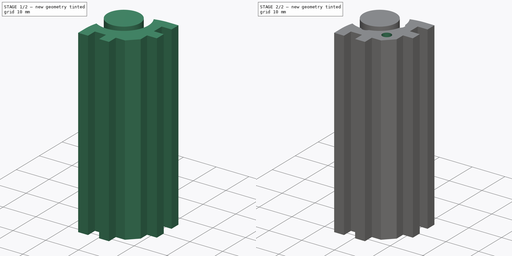
[diagram: build sequence overview — one tinted view per stage of 2, left to right]
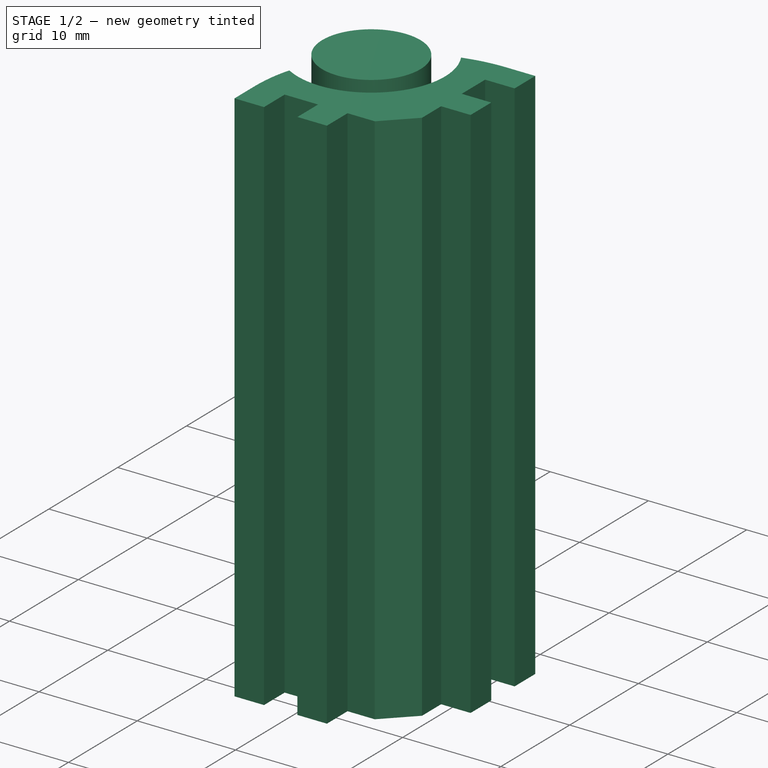
[diagram: stage 1 of 2 — iso view after this stage's code; geometry added in this stage tinted green]
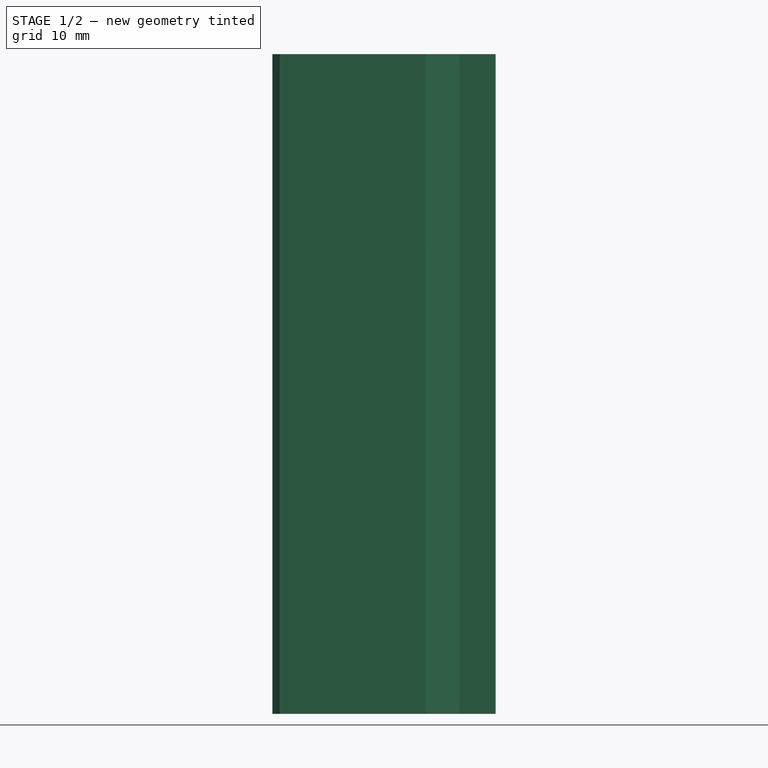
[diagram: stage 1 of 2 — front view after this stage's code; geometry added in this stage tinted green]
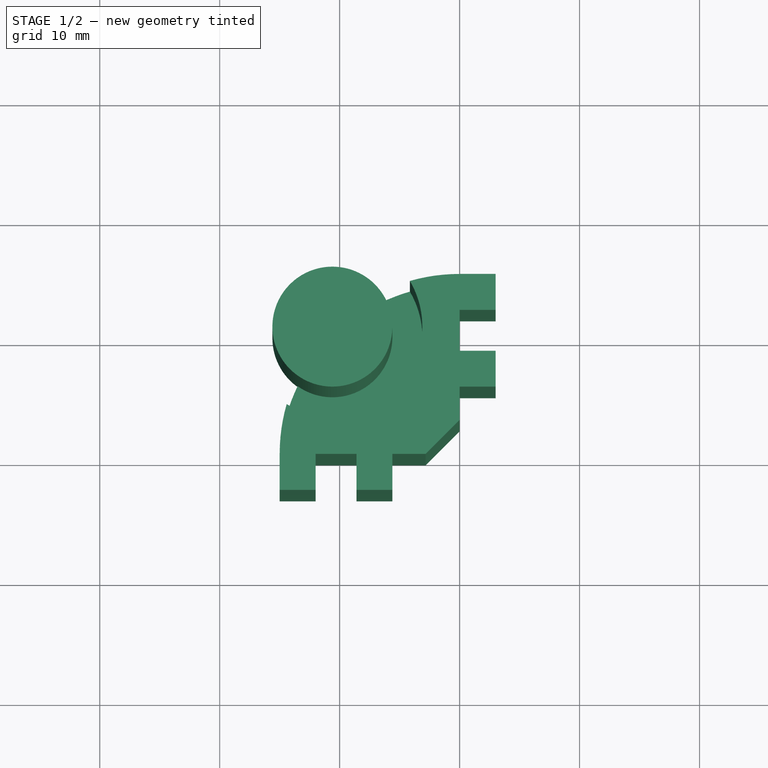
[diagram: stage 1 of 2 — top view after this stage's code; geometry added in this stage tinted green]
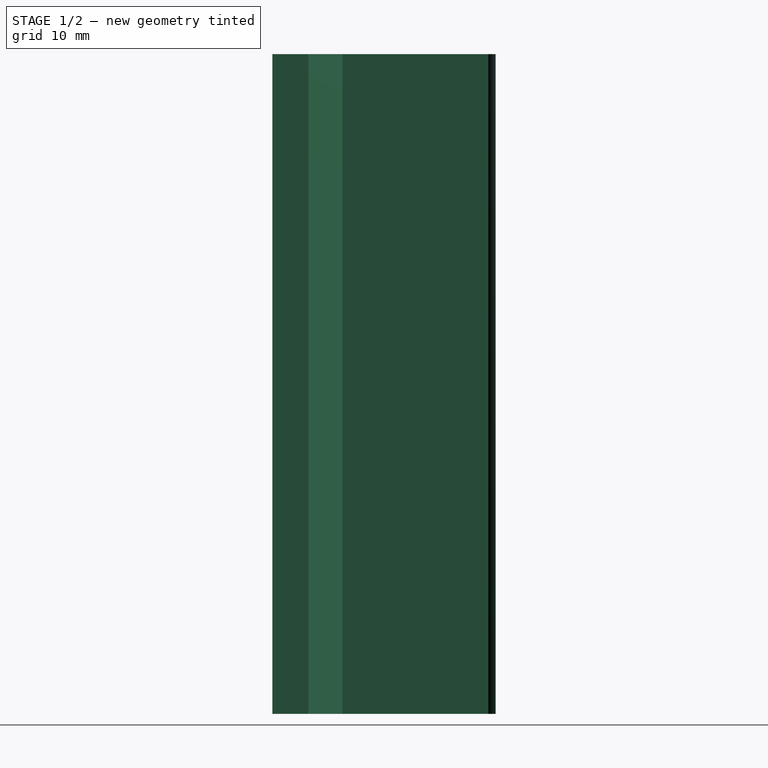
[diagram: stage 1 of 2 — right view after this stage's code; geometry added in this stage tinted green]
FCSTD DOCUMENT  (FreeCAD 0.16R6151 (Git))
Label: Edge
License: All rights reserved
LicenseURL: http://en.wikipedia.org/wiki/All_rights_reserved
objects: Sketcher::SketchObject×4, PartDesign::Pocket×3, PartDesign::Pad×1
note: 12 computed .brp shape members not serialized (recipe doc carries the construction recipe); baked Part::Feature solids carry a one-line shape summary decoded from their .brp

FEATURE [Sketcher::SketchObject] Sketch
  sketch-geometry (25):
    g0: LineSegment StartX=-15 StartY=0 StartZ=0 EndX=-15 EndY=-3 EndZ=0
    g1: LineSegment StartX=-15 StartY=-3 StartZ=0 EndX=-12 EndY=-3 EndZ=0
    g2: LineSegment StartX=-12 StartY=-3 StartZ=0 EndX=-12 EndY=0 EndZ=0
    g3: LineSegment StartX=-12 StartY=0 StartZ=0 EndX=-8.6 EndY=0 EndZ=0
    g4: LineSegment StartX=-8.6 StartY=0 StartZ=0 EndX=-8.6 EndY=-3 EndZ=0
    g5: LineSegment StartX=-8.6 StartY=-3 StartZ=0 EndX=-5.6 EndY=-3 EndZ=0
    g6: LineSegment StartX=-5.6 StartY=-3 StartZ=0 EndX=-5.6 EndY=0 EndZ=0
    g7: LineSegment [constr] StartX=-12 StartY=-3 StartZ=0 EndX=-8.6 EndY=-3 EndZ=0
    g8: LineSegment StartX=-5.6 StartY=0 StartZ=0 EndX=-2.82843 EndY=0 EndZ=0
    g9: LineSegment StartX=-2.82843 StartY=0 StartZ=0 EndX=0 EndY=2.82843 EndZ=0
    g10: LineSegment StartX=0 StartY=15 StartZ=0 EndX=3 EndY=15 EndZ=0
    g11: LineSegment StartX=3 StartY=15 StartZ=0 EndX=3 EndY=12 EndZ=0
    g12: LineSegment StartX=3 StartY=12 StartZ=0 EndX=0 EndY=12 EndZ=0
    g13: LineSegment StartX=0 StartY=12 StartZ=0 EndX=0 EndY=8.6 EndZ=0
    g14: LineSegment StartX=0 StartY=8.6 StartZ=0 EndX=3 EndY=8.6 EndZ=0
    g15: LineSegment StartX=3 StartY=8.6 StartZ=0 EndX=3 EndY=5.6 EndZ=0
    g16: LineSegment StartX=3 StartY=5.6 StartZ=0 EndX=0 EndY=5.6 EndZ=0
    g17: LineSegment StartX=0 StartY=5.6 StartZ=0 EndX=0 EndY=2.82843 EndZ=0
    g18: LineSegment [constr] StartX=3 StartY=12 StartZ=0 EndX=3 EndY=8.6 EndZ=0
    g19: ArcOfCircle CenterX=0 CenterY=0 CenterZ=0 NormalX=0 NormalY=0 NormalZ=1 Radius=15 StartAngle=2.69109 EndAngle=3.14159
    g20: ArcOfCircle CenterX=0 CenterY=0 CenterZ=0 NormalX=0 NormalY=0 NormalZ=1 Radius=15 StartAngle=1.5708 EndAngle=2.0213
    g21: ArcOfCircle CenterX=-10.6066 CenterY=10.6066 CenterZ=0 NormalX=0 NormalY=0 NormalZ=1 Radius=5 StartAngle=0.61795 EndAngle=4.09444
    g22: ArcOfCircle [constr] CenterX=0 CenterY=0 CenterZ=0 NormalX=0 NormalY=0 NormalZ=1 Radius=15 StartAngle=2.0213 EndAngle=2.69109
    g23: LineSegment [constr] StartX=-6.53126 StartY=13.5034 StartZ=0 EndX=0 EndY=13.5034 EndZ=0
    g24: LineSegment [constr] StartX=-13.5034 StartY=6.53126 StartZ=0 EndX=-13.5034 EndY=0 EndZ=0
  constraints (71):
    c: PointOnObject(g19,g-1)
    c: Tangent(g19,g0) = -1.5708
    c: Coincident(g0,g1)
    c: Horizontal(g1)
    c: Coincident(g1,g2)
    c: Vertical(g2)
    c: Coincident(g2,g3)
    c: Horizontal(g3)
    c: Coincident(g3,g4)
    c: Vertical(g4)
    c: Coincident(g4,g5)
    c: Horizontal(g5)
    c: Coincident(g5,g6)
    c: Vertical(g6)
    c: Coincident(g7,g1)
    c: Coincident(g7,g4)
    c: Horizontal(g7)
    c: PointOnObject(g20,g-2)
    c: PointOnObject(g6,g-1)
    c: Coincident(g6,g8)
    c: PointOnObject(g8,g-1)
    c: Coincident(g8,g9)
    c: PointOnObject(g9,g-2)
    c: Tangent(g20,g10) = 1.5708
    c: Coincident(g10,g11)
    c: Vertical(g11)
    c: Coincident(g11,g12)
    c: Horizontal(g12)
    c: Coincident(g12,g13)
    c: Vertical(g13)
    c: Coincident(g13,g14)
    c: Horizontal(g14)
    c: Coincident(g14,g15)
    c: Vertical(g15)
    c: Coincident(g15,g16)
    c: PointOnObject(g16,g-2)
    c: Horizontal(g16)
    c: Coincident(g16,g17)
    c: Coincident(g17,g9)
    c: Equal(g8,g17)
    c: Equal(g1,g5)
    c: Equal(g5,g15)
    c: Equal(g11,g15)
    c: Coincident(g18,g11)
    c: Coincident(g18,g14)
    c: Vertical(g18)
    c: Equal(g13,g3)
    c: Distance(g3) = 3.4
    c: Equal(g4,g12)
    c: PointOnObject(g2,g-1)
    c: PointOnObject(g13,g-2)
    c: Distance(g16) = 3
    c: Distance(g1) = 3
    c: Distance(g9) = 4
    c: Coincident(g19,g-1)
    c: Coincident(g20,g-1)
    c: Coincident(g21,g19)
    c: Coincident(g21,g20)
    c: Coincident(g22,g-1)
    c: Coincident(g22,g19)
    c: Coincident(g22,g20)
    c: PointOnObject(g21,g22)
    c: Radius(g21) = 5
    c: Radius(g19) = 15
    c: Coincident(g23,g20)
    c: PointOnObject(g23,g-2)
    c: Horizontal(g23)
    c: Coincident(g24,g19)
    c: PointOnObject(g24,g-1)
    c: Vertical(g24)
    c: Equal(g24,g23)
FEATURE [PartDesign::Pad] Pad
  Length = 55
  Length2 = 100
  Sketch = -> Sketch
  Type = 0
FEATURE [Sketcher::SketchObject] Sketch001
  Support = -> Pad [Face22]
  sketch-geometry (5):
    g0: Circle CenterX=-10.6066 CenterY=10.6066 CenterZ=0 NormalX=0 NormalY=0 NormalZ=1 Radius=7.5
    g1: Circle CenterX=-10.6066 CenterY=10.6066 CenterZ=0 NormalX=0 NormalY=0 NormalZ=1 Radius=5
    g2: LineSegment [constr] StartX=-10.6066 StartY=10.6066 StartZ=0 EndX=0 EndY=10.6066 EndZ=0
    g3: LineSegment [constr] StartX=-10.6066 StartY=10.6066 StartZ=0 EndX=-10.6066 EndY=0 EndZ=0
    g4: ArcOfCircle [constr] CenterX=0 CenterY=0 CenterZ=0 NormalX=0 NormalY=0 NormalZ=1 Radius=15 StartAngle=1.5708 EndAngle=3.14159
  constraints (15):
    c: Coincident(g1,g0)
    c: Radius(g1) = 5
    c: Coincident(g2,g0)
    c: PointOnObject(g2,g-2)
    c: Horizontal(g2)
    c: Coincident(g3,g0)
    c: PointOnObject(g3,g-1)
    c: Vertical(g3)
    c: Equal(g2,g3)
    c: Radius(g0) = 7.5
    c: Coincident(g4,g-1)
    c: PointOnObject(g4,g-1)
    c: PointOnObject(g4,g-2)
    c: PointOnObject(g0,g4)
    c: Radius(g4) = 15
FEATURE [PartDesign::Pocket] Pocket
  Length = 51
  Sketch = -> Sketch001
  Type = 0
  expr: Length = Pad.Length - 4mm
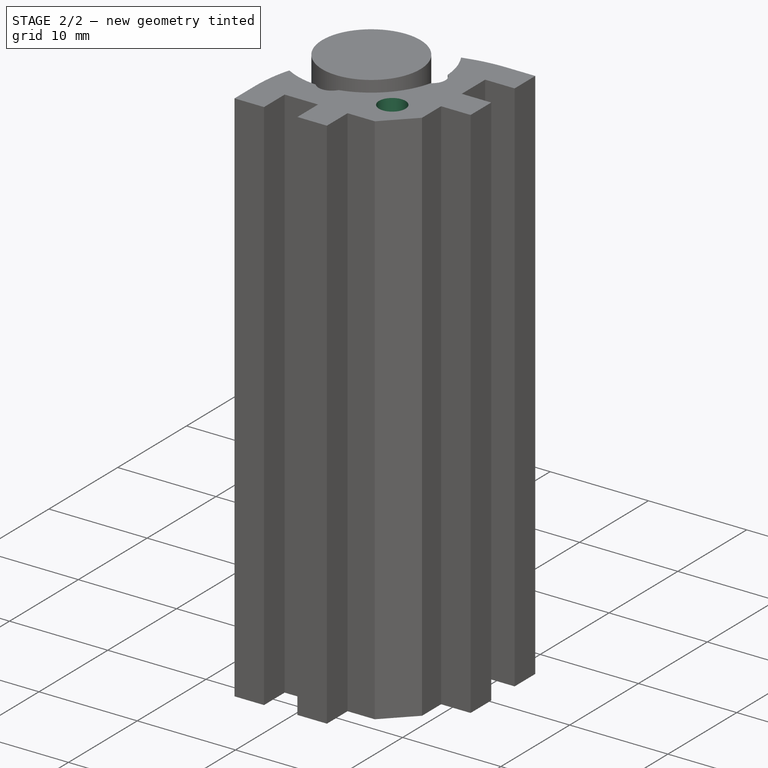
[diagram: stage 2 of 2 — iso view after this stage's code; geometry added in this stage tinted green]
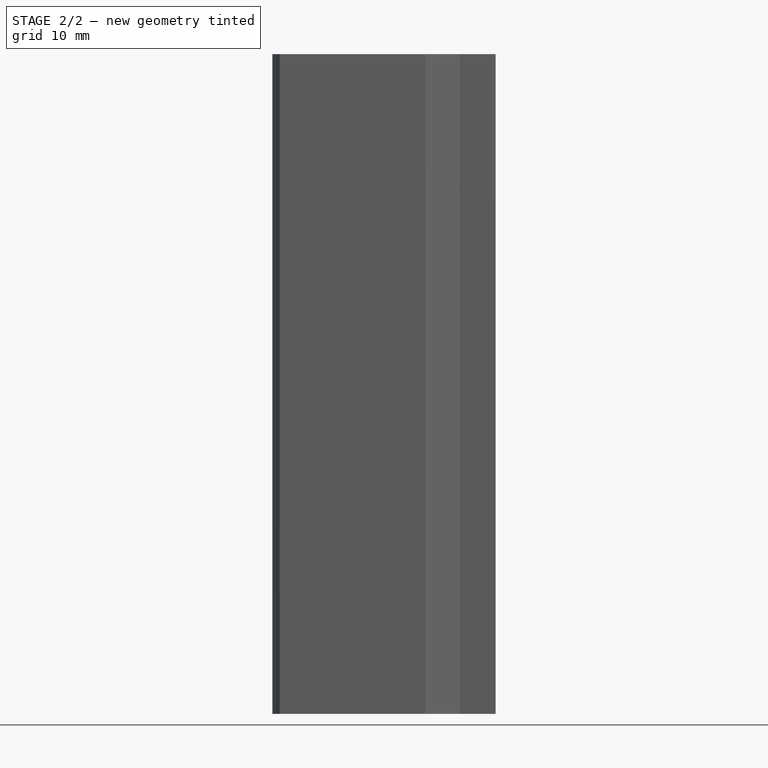
[diagram: stage 2 of 2 — front view after this stage's code; geometry added in this stage tinted green]
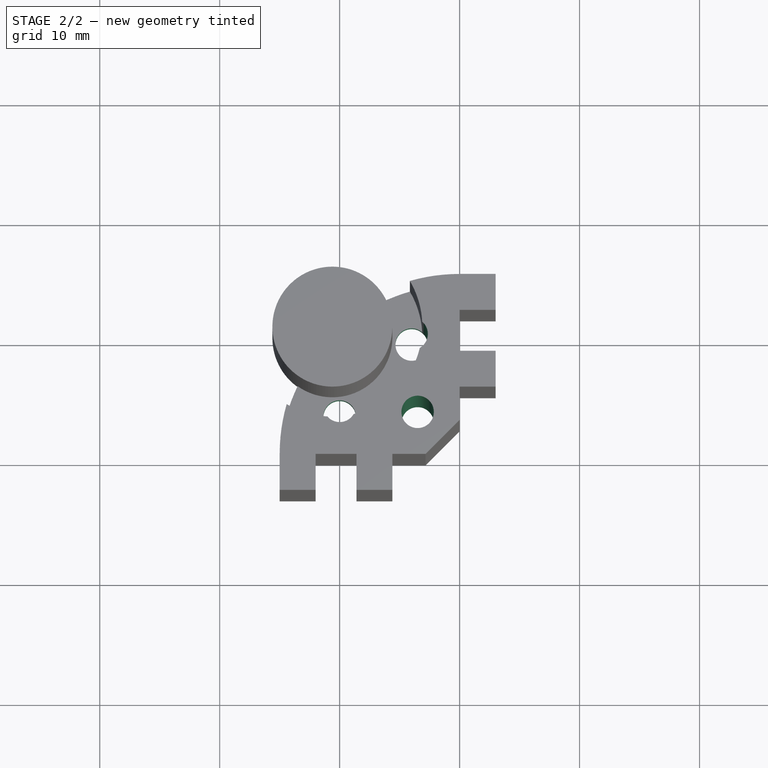
[diagram: stage 2 of 2 — top view after this stage's code; geometry added in this stage tinted green]
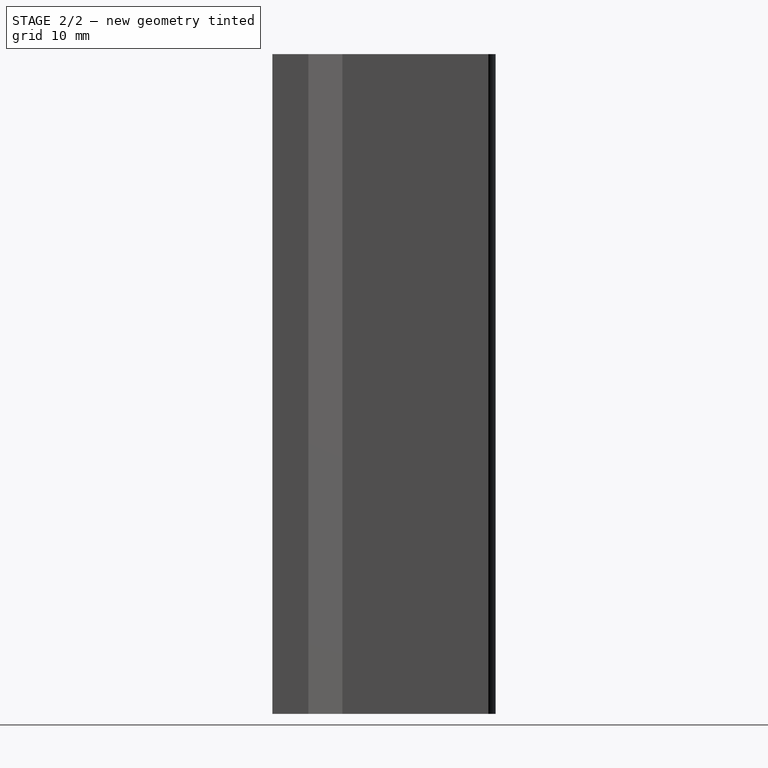
[diagram: stage 2 of 2 — right view after this stage's code; geometry added in this stage tinted green]
FEATURE [Sketcher::SketchObject] Sketch002
  Support = -> Pocket [Face4]
  sketch-geometry (4):
    g0: ArcOfCircle [constr] CenterX=0 CenterY=0 CenterZ=0 NormalX=0 NormalY=0 NormalZ=1 Radius=15 StartAngle=1.5708 EndAngle=3.14159
    g1: Circle CenterX=-10.6066 CenterY=10.6066 CenterZ=0 NormalX=0 NormalY=0 NormalZ=1 Radius=1.35
    g2: LineSegment [constr] StartX=-10.6066 StartY=10.6066 StartZ=0 EndX=0 EndY=10.6066 EndZ=0
    g3: LineSegment [constr] StartX=-10.6066 StartY=10.6066 StartZ=0 EndX=-10.6066 EndY=0 EndZ=0
  constraints (13):
    c: Coincident(g0,g-1)
    c: PointOnObject(g0,g-1)
    c: PointOnObject(g0,g-2)
    c: Radius(g0) = 15
    c: PointOnObject(g1,g0)
    c: Coincident(g2,g1)
    c: PointOnObject(g2,g-2)
    c: Horizontal(g2)
    c: Coincident(g3,g1)
    c: PointOnObject(g3,g-1)
    c: Vertical(g3)
    c: Equal(g2,g3)
    c: Radius(g1) = 1.35
FEATURE [PartDesign::Pocket] Pocket001
  Length = 15
  Sketch = -> Sketch002
  Type = 0
FEATURE [Sketcher::SketchObject] Sketch003
  Support = -> Pocket001 [Face2]
  sketch-geometry (11):
    g0: Circle CenterX=-10 CenterY=-4 CenterZ=0 NormalX=0 NormalY=0 NormalZ=1 Radius=1.35
    g1: Circle CenterX=-4 CenterY=-10 CenterZ=0 NormalX=0 NormalY=0 NormalZ=1 Radius=1.35
    g2: Circle CenterX=-3.5 CenterY=-3.5 CenterZ=0 NormalX=0 NormalY=0 NormalZ=1 Radius=1.35
    g3: LineSegment [constr] StartX=-3.5 StartY=-3.5 StartZ=0 EndX=-3.5 EndY=0 EndZ=0
    g4: LineSegment [constr] StartX=-10 StartY=-4 StartZ=0 EndX=-10 EndY=0 EndZ=0
    g5: LineSegment [constr] StartX=-3.5 StartY=-3.5 StartZ=0 EndX=0 EndY=-3.5 EndZ=0
    g6: LineSegment [constr] StartX=-4 StartY=-10 StartZ=0 EndX=0 EndY=-10 EndZ=0
    g7: LineSegment [constr] StartX=-10 StartY=-4 StartZ=0 EndX=-10 EndY=-10 EndZ=0
    g8: LineSegment [constr] StartX=-10 StartY=-10 StartZ=0 EndX=-4 EndY=-10 EndZ=0
    g9: LineSegment [constr] StartX=-10 StartY=0 StartZ=0 EndX=0 EndY=0 EndZ=0
    g10: LineSegment [constr] StartX=0 StartY=0 StartZ=0 EndX=0 EndY=-10 EndZ=0
  constraints (31):
    c: Equal(g0,g2)
    c: Equal(g2,g1)
    c: Radius(g2) = 1.35
    c: Coincident(g3,g2)
    c: PointOnObject(g3,g-1)
    c: Vertical(g3)
    c: Coincident(g4,g0)
    c: PointOnObject(g4,g-1)
    c: Vertical(g4)
    c: Coincident(g5,g2)
    c: PointOnObject(g5,g-2)
    c: Horizontal(g5)
    c: Equal(g5,g3)
    c: Coincident(g6,g1)
    c: PointOnObject(g6,g-2)
    c: Horizontal(g6)
    c: Equal(g6,g4)
    c: Coincident(g7,g0)
    c: Vertical(g7)
    c: Coincident(g7,g8)
    c: Coincident(g8,g1)
    c: Horizontal(g8)
    c: Equal(g7,g8)
    c: Coincident(g9,g4)
    c: Coincident(g9,g-1)
    c: Coincident(g10,g6)
    c: Vertical(g10)
    c: Equal(g9,g10)
    c: Distance(g4) = 4
    c: Distance(g10) = 10
    c: Distance(g3) = 3.5
FEATURE [PartDesign::Pocket] Pocket002
  Length = 5
  Sketch = -> Sketch003
  Type = 1
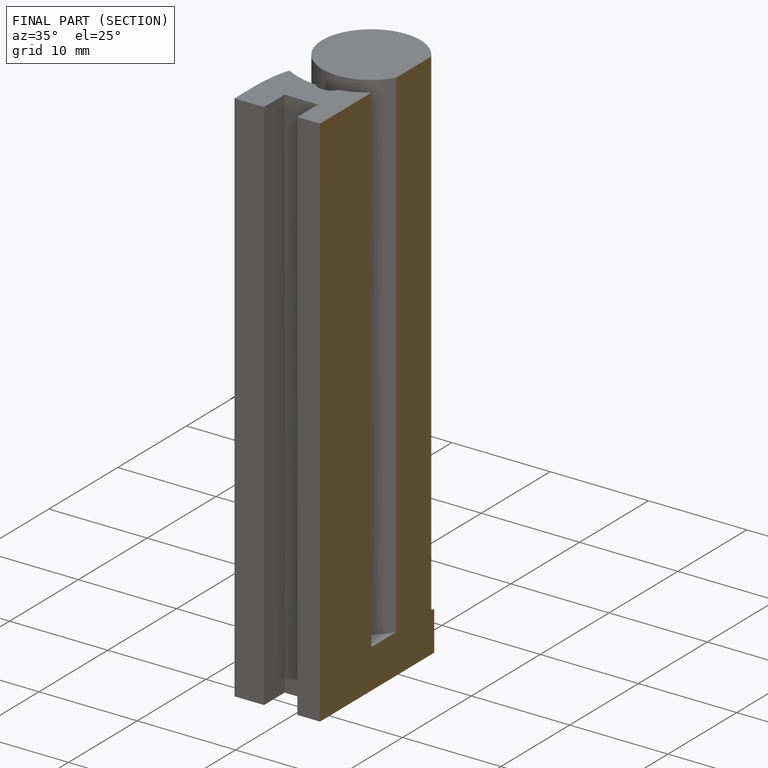
[diagram: finished part — half-section view (interior)]
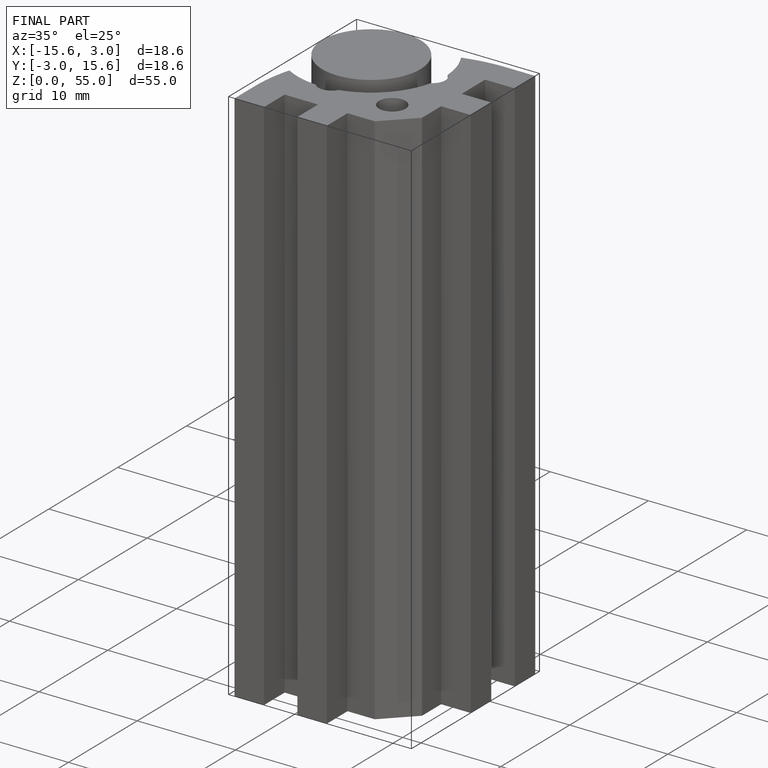
[diagram: finished part — iso view with bounding-box wireframe]
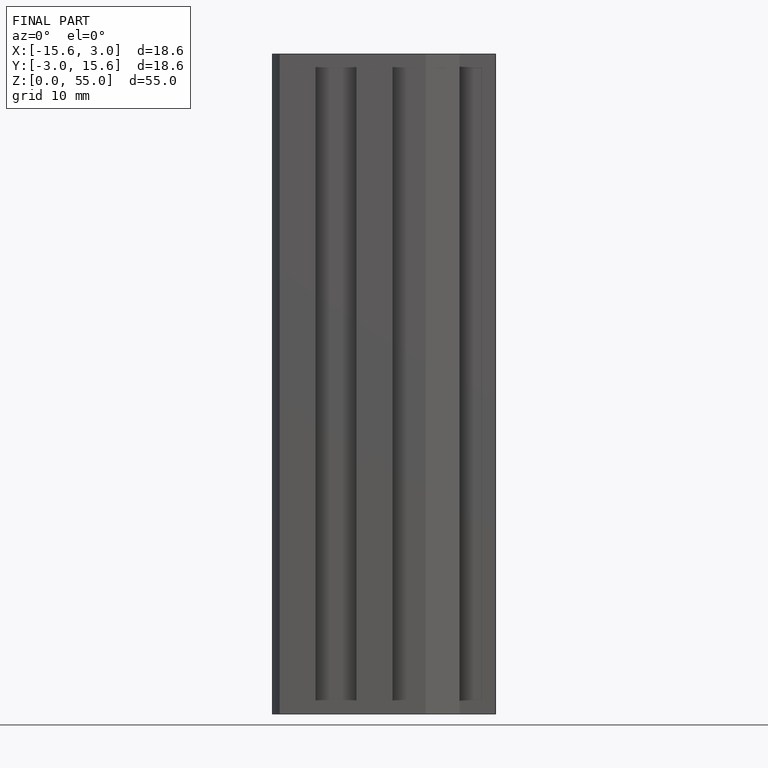
[diagram: finished part — front view with bounding-box wireframe]
